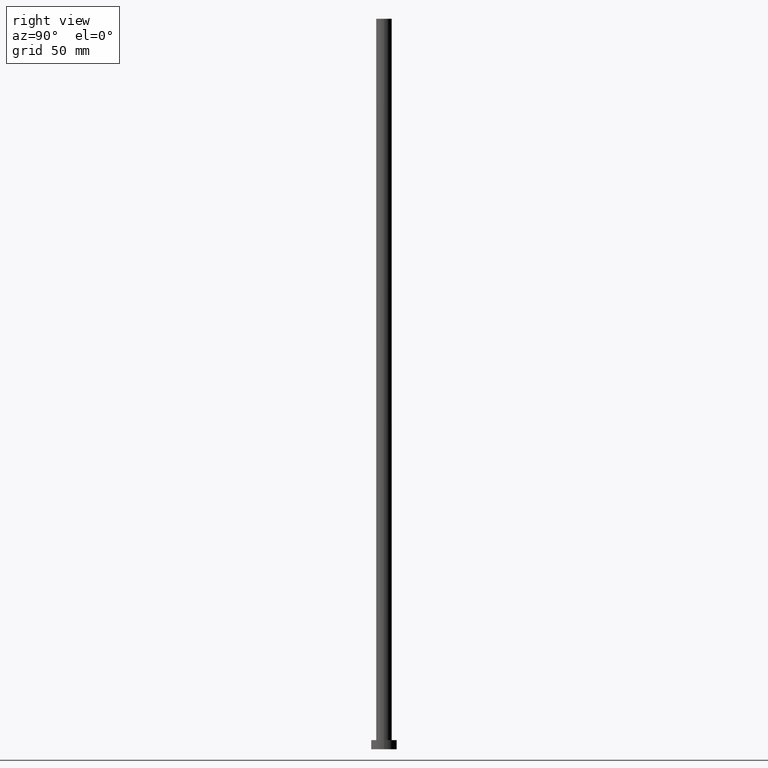
[diagram: clean part render]
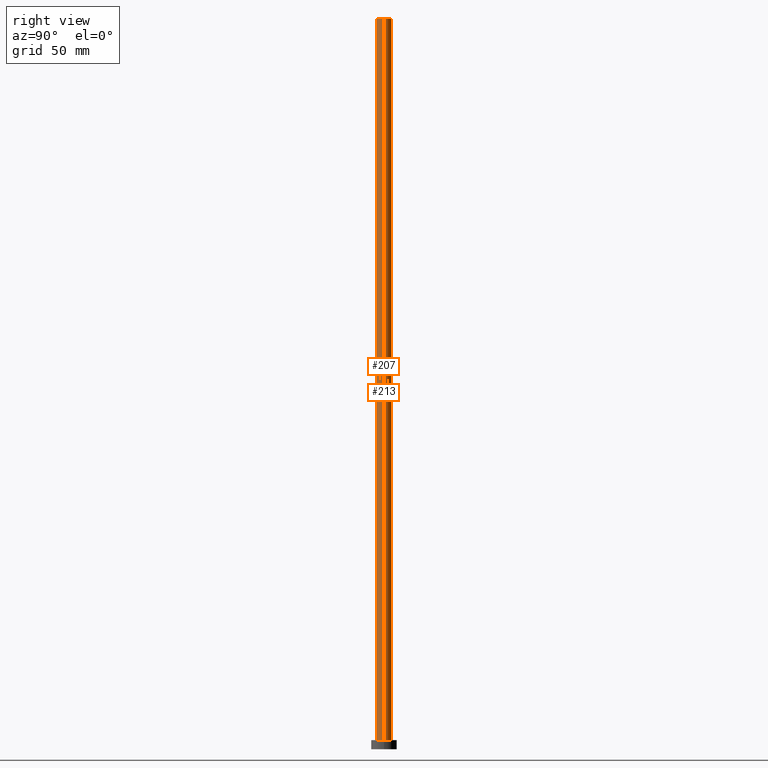
[diagram: same view with one multi-face feature highlighted, each face labeled with its STEP entity id]
A machine part, right view. The highlighted faces form ONE feature: a constant-radius fillet chain: 2 tangent blend faces with common blend radius 4.25 mm. The faces share edges in the B-rep.
Their STEP definitions:
[1] entity #207 (Cylinder):
#3 = CARTESIAN_POINT ( 'NONE',  ( 0.000000000000000000, 0.000000000000000000, 5.000000000000000000 ) ) ;
#6 = CARTESIAN_POINT ( 'NONE',  ( 4.250000000000000000, 5.204748896376249713E-16, 5.000000000000000000 ) ) ;
#24 = CARTESIAN_POINT ( 'NONE',  ( -4.250000000000000000, 0.000000000000000000, 400.0000000000000000 ) ) ;
#26 = LINE ( 'NONE', #184, #167 ) ;
#32 = VECTOR ( 'NONE', #221, 1000.000000000000000 ) ;
#47 = ORIENTED_EDGE ( 'NONE', *, *, #234, .T. ) ;
#53 = AXIS2_PLACEMENT_3D ( 'NONE', #162, #145, #201 ) ;
#56 = ORIENTED_EDGE ( 'NONE', *, *, #161, .T. ) ;
#62 = DIRECTION ( 'NONE',  ( 1.000000000000000000, 0.000000000000000000, 0.000000000000000000 ) ) ;
#68 = CARTESIAN_POINT ( 'NONE',  ( -4.250000000000000000, 0.000000000000000000, 400.0000000000000000 ) ) ;
#79 = VERTEX_POINT ( 'NONE', #156 ) ;
#90 = EDGE_CURVE ( 'NONE', #154, #235, #254, .T. ) ;
#91 = DIRECTION ( 'NONE',  ( 1.000000000000000000, 0.000000000000000000, 0.000000000000000000 ) ) ;
#103 = DIRECTION ( 'NONE',  ( 0.000000000000000000, 0.000000000000000000, 1.000000000000000000 ) ) ;
#106 = DIRECTION ( 'NONE',  ( -0.000000000000000000, -0.000000000000000000, -1.000000000000000000 ) ) ;
#111 = EDGE_LOOP ( 'NONE', ( #159, #197, #56, #47 ) ) ;
#126 = LINE ( 'NONE', #24, #32 ) ;
#133 = AXIS2_PLACEMENT_3D ( 'NONE', #3, #202, #91 ) ;
#145 = DIRECTION ( 'NONE',  ( -0.000000000000000000, -0.000000000000000000, -1.000000000000000000 ) ) ;
#154 = VERTEX_POINT ( 'NONE', #68 ) ;
#156 = CARTESIAN_POINT ( 'NONE',  ( -4.250000000000000000, 0.000000000000000000, 5.000000000000000000 ) ) ;
#159 = ORIENTED_EDGE ( 'NONE', *, *, #223, .F. ) ;
#161 = EDGE_CURVE ( 'NONE', #154, #79, #126, .T. ) ;
#162 = CARTESIAN_POINT ( 'NONE',  ( 0.000000000000000000, 0.000000000000000000, 400.0000000000000000 ) ) ;
#167 = VECTOR ( 'NONE', #106, 1000.000000000000000 ) ;
#176 = CARTESIAN_POINT ( 'NONE',  ( 0.000000000000000000, 0.000000000000000000, 400.0000000000000000 ) ) ;
#177 = AXIS2_PLACEMENT_3D ( 'NONE', #176, #103, #62 ) ;
#183 = FACE_OUTER_BOUND ( 'NONE', #111, .T. ) ;
#184 = CARTESIAN_POINT ( 'NONE',  ( 4.250000000000000000, 5.204748896376249713E-16, 400.0000000000000000 ) ) ;
#185 = CYLINDRICAL_SURFACE ( 'NONE', #53, 4.250000000000000000 ) ;
#191 = VERTEX_POINT ( 'NONE', #6 ) ;
#197 = ORIENTED_EDGE ( 'NONE', *, *, #90, .F. ) ;
#198 = CIRCLE ( 'NONE', #133, 4.250000000000000000 ) ;
#201 = DIRECTION ( 'NONE',  ( -1.000000000000000000, 0.000000000000000000, 0.000000000000000000 ) ) ;
#202 = DIRECTION ( 'NONE',  ( 0.000000000000000000, 0.000000000000000000, 1.000000000000000000 ) ) ;
#207 = ADVANCED_FACE ( 'NONE', ( #183 ), #185, .T. ) ;
#221 = DIRECTION ( 'NONE',  ( -0.000000000000000000, -0.000000000000000000, -1.000000000000000000 ) ) ;
#223 = EDGE_CURVE ( 'NONE', #235, #191, #26, .T. ) ;
#234 = EDGE_CURVE ( 'NONE', #79, #191, #198, .T. ) ;
#235 = VERTEX_POINT ( 'NONE', #240 ) ;
#240 = CARTESIAN_POINT ( 'NONE',  ( 4.250000000000000000, 5.204748896376249713E-16, 400.0000000000000000 ) ) ;
#254 = CIRCLE ( 'NONE', #177, 4.250000000000000000 ) ;
[2] entity #213 (Cylinder):
#2 = DIRECTION ( 'NONE',  ( -0.000000000000000000, -0.000000000000000000, -1.000000000000000000 ) ) ;
#4 = DIRECTION ( 'NONE',  ( 0.000000000000000000, 0.000000000000000000, 1.000000000000000000 ) ) ;
#6 = CARTESIAN_POINT ( 'NONE',  ( 4.250000000000000000, 5.204748896376249713E-16, 5.000000000000000000 ) ) ;
#17 = DIRECTION ( 'NONE',  ( 0.000000000000000000, 0.000000000000000000, 1.000000000000000000 ) ) ;
#24 = CARTESIAN_POINT ( 'NONE',  ( -4.250000000000000000, 0.000000000000000000, 400.0000000000000000 ) ) ;
#26 = LINE ( 'NONE', #184, #167 ) ;
#32 = VECTOR ( 'NONE', #221, 1000.000000000000000 ) ;
#39 = ORIENTED_EDGE ( 'NONE', *, *, #223, .T. ) ;
#40 = DIRECTION ( 'NONE',  ( 1.000000000000000000, 0.000000000000000000, 0.000000000000000000 ) ) ;
#52 = ORIENTED_EDGE ( 'NONE', *, *, #95, .T. ) ;
#66 = CARTESIAN_POINT ( 'NONE',  ( 0.000000000000000000, 0.000000000000000000, 5.000000000000000000 ) ) ;
#68 = CARTESIAN_POINT ( 'NONE',  ( -4.250000000000000000, 0.000000000000000000, 400.0000000000000000 ) ) ;
#71 = CIRCLE ( 'NONE', #102, 4.250000000000000000 ) ;
#79 = VERTEX_POINT ( 'NONE', #156 ) ;
#87 = CARTESIAN_POINT ( 'NONE',  ( 0.000000000000000000, 0.000000000000000000, 400.0000000000000000 ) ) ;
#95 = EDGE_CURVE ( 'NONE', #191, #79, #71, .T. ) ;
#96 = EDGE_LOOP ( 'NONE', ( #116, #39, #52, #174 ) ) ;
#102 = AXIS2_PLACEMENT_3D ( 'NONE', #66, #17, #40 ) ;
#105 = CYLINDRICAL_SURFACE ( 'NONE', #107, 4.250000000000000000 ) ;
#106 = DIRECTION ( 'NONE',  ( -0.000000000000000000, -0.000000000000000000, -1.000000000000000000 ) ) ;
#107 = AXIS2_PLACEMENT_3D ( 'NONE', #109, #2, #147 ) ;
#109 = CARTESIAN_POINT ( 'NONE',  ( 0.000000000000000000, 0.000000000000000000, 400.0000000000000000 ) ) ;
#116 = ORIENTED_EDGE ( 'NONE', *, *, #170, .F. ) ;
#126 = LINE ( 'NONE', #24, #32 ) ;
#128 = DIRECTION ( 'NONE',  ( 1.000000000000000000, 0.000000000000000000, 0.000000000000000000 ) ) ;
#147 = DIRECTION ( 'NONE',  ( -1.000000000000000000, 0.000000000000000000, 0.000000000000000000 ) ) ;
#154 = VERTEX_POINT ( 'NONE', #68 ) ;
#156 = CARTESIAN_POINT ( 'NONE',  ( -4.250000000000000000, 0.000000000000000000, 5.000000000000000000 ) ) ;
#161 = EDGE_CURVE ( 'NONE', #154, #79, #126, .T. ) ;
#167 = VECTOR ( 'NONE', #106, 1000.000000000000000 ) ;
#170 = EDGE_CURVE ( 'NONE', #235, #154, #248, .T. ) ;
#174 = ORIENTED_EDGE ( 'NONE', *, *, #161, .F. ) ;
#184 = CARTESIAN_POINT ( 'NONE',  ( 4.250000000000000000, 5.204748896376249713E-16, 400.0000000000000000 ) ) ;
#191 = VERTEX_POINT ( 'NONE', #6 ) ;
#204 = AXIS2_PLACEMENT_3D ( 'NONE', #87, #4, #128 ) ;
#213 = ADVANCED_FACE ( 'NONE', ( #237 ), #105, .T. ) ;
#221 = DIRECTION ( 'NONE',  ( -0.000000000000000000, -0.000000000000000000, -1.000000000000000000 ) ) ;
#223 = EDGE_CURVE ( 'NONE', #235, #191, #26, .T. ) ;
#235 = VERTEX_POINT ( 'NONE', #240 ) ;
#237 = FACE_OUTER_BOUND ( 'NONE', #96, .T. ) ;
#240 = CARTESIAN_POINT ( 'NONE',  ( 4.250000000000000000, 5.204748896376249713E-16, 400.0000000000000000 ) ) ;
#248 = CIRCLE ( 'NONE', #204, 4.250000000000000000 ) ;